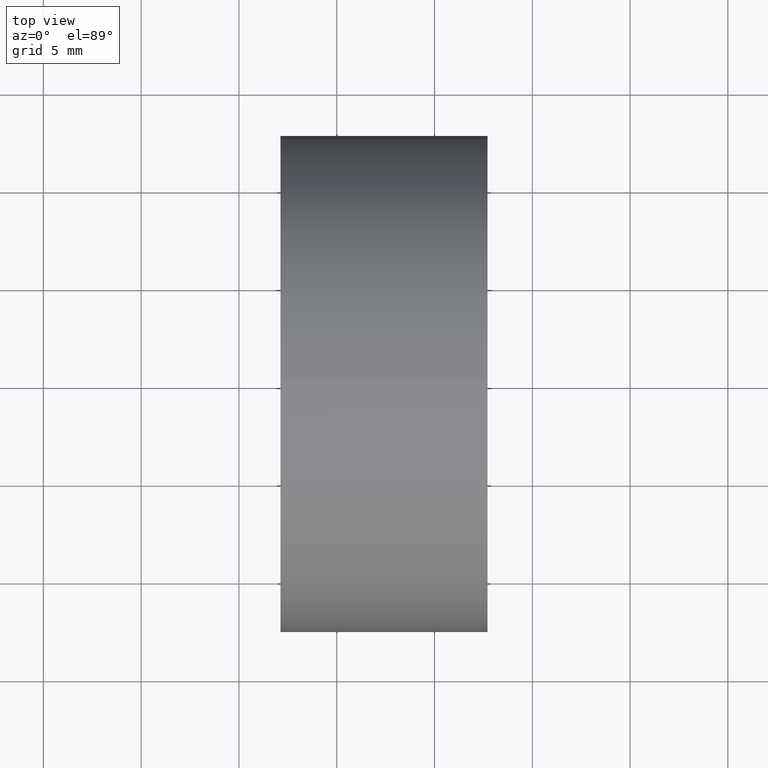
[diagram: clean part render]
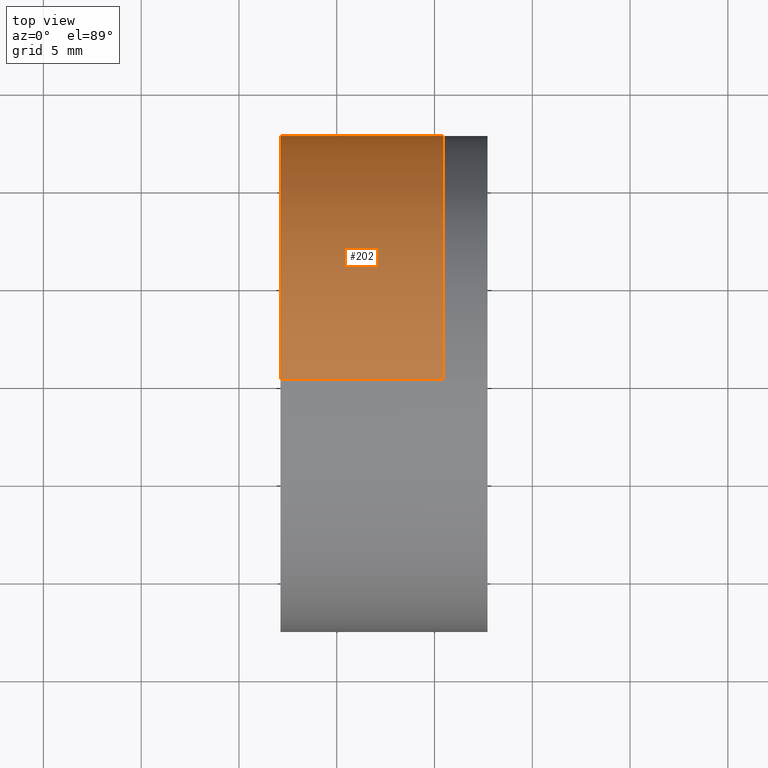
[diagram: same view with one face highlighted and labeled with its STEP entity id]
A machine part, top view. The second image highlights one B-rep face of the part: STEP entity #202.
In plain terms, the highlighted cylindrical surface (partial cylindrical patch) has radius 12.7 mm, axis along (-1, -0, 0).
Its self-contained STEP definition (entity closure, byte-faithful):
#16 = EDGE_CURVE ( 'NONE', #320, #158, #213, .T. ) ;
#72 = FACE_OUTER_BOUND ( 'NONE', #111, .T. ) ;
#91 = ORIENTED_EDGE ( 'NONE', *, *, #147, .T. ) ;
#100 = DIRECTION ( 'NONE',  ( 1.878145495644173900E-016, 0.0000000000000000000, 1.000000000000000000 ) ) ;
#111 = EDGE_LOOP ( 'NONE', ( #91, #339, #285, #206 ) ) ;
#118 = DIRECTION ( 'NONE',  ( 0.0000000000000000000, 0.0000000000000000000, 1.000000000000000000 ) ) ;
#120 = VERTEX_POINT ( 'NONE', #166 ) ;
#140 = AXIS2_PLACEMENT_3D ( 'NONE', #175, #179, #255 ) ;
#147 = EDGE_CURVE ( 'NONE', #120, #247, #347, .T. ) ;
#149 = CARTESIAN_POINT ( 'NONE',  ( 257.1233165672844600, 0.0000000000000000000, -4.738269518283348700E-014 ) ) ;
#154 = CYLINDRICAL_SURFACE ( 'NONE', #233, 12.70000000000004700 ) ;
#158 = VERTEX_POINT ( 'NONE', #183 ) ;
#164 = DIRECTION ( 'NONE',  ( -1.000000000000000000, -0.0000000000000000000, 1.836970198721029700E-016 ) ) ;
#166 = CARTESIAN_POINT ( 'NONE',  ( 265.4434669434605200, 0.0000000000000000000, 12.69999999999999900 ) ) ;
#175 = CARTESIAN_POINT ( 'NONE',  ( 265.4434669434605200, 0.0000000000000000000, -4.891108201182477700E-014 ) ) ;
#179 = DIRECTION ( 'NONE',  ( -1.000000000000000000, -0.0000000000000000000, 1.836970198721029700E-016 ) ) ;
#180 = VECTOR ( 'NONE', #164, 1000.000000000000000 ) ;
#181 = CARTESIAN_POINT ( 'NONE',  ( 265.4434669434605200, 1.555301434917144500E-015, -12.70000000000009700 ) ) ;
#183 = CARTESIAN_POINT ( 'NONE',  ( 257.1233165672844600, 1.555301434917144000E-015, -12.70000000000004900 ) ) ;
#198 = LINE ( 'NONE', #315, #256 ) ;
#202 = ADVANCED_FACE ( 'NONE', ( #72 ), #154, .T. ) ;
#206 = ORIENTED_EDGE ( 'NONE', *, *, #276, .F. ) ;
#207 = DIRECTION ( 'NONE',  ( -1.000000000000000000, -0.0000000000000000000, 1.836970198721029700E-016 ) ) ;
#213 = CIRCLE ( 'NONE', #329, 12.70000000000004500 ) ;
#222 = CARTESIAN_POINT ( 'NONE',  ( 257.1233165672844600, 0.0000000000000000000, 12.69999999999999900 ) ) ;
#233 = AXIS2_PLACEMENT_3D ( 'NONE', #293, #207, #100 ) ;
#242 = CARTESIAN_POINT ( 'NONE',  ( -0.8160621761658063400, 1.555301434917144500E-015, -12.70000000000004700 ) ) ;
#247 = VERTEX_POINT ( 'NONE', #181 ) ;
#255 = DIRECTION ( 'NONE',  ( 0.0000000000000000000, 0.0000000000000000000, 1.000000000000000000 ) ) ;
#256 = VECTOR ( 'NONE', #314, 1000.000000000000000 ) ;
#276 = EDGE_CURVE ( 'NONE', #120, #320, #198, .T. ) ;
#285 = ORIENTED_EDGE ( 'NONE', *, *, #16, .F. ) ;
#293 = CARTESIAN_POINT ( 'NONE',  ( -0.8160621761658039000, 0.0000000000000000000, 0.0000000000000000000 ) ) ;
#311 = DIRECTION ( 'NONE',  ( -1.000000000000000000, -0.0000000000000000000, 1.836970198721029700E-016 ) ) ;
#314 = DIRECTION ( 'NONE',  ( -1.000000000000000000, -0.0000000000000000000, 1.836970198721029700E-016 ) ) ;
#315 = CARTESIAN_POINT ( 'NONE',  ( -0.8160621761658015700, 0.0000000000000000000, 12.70000000000004700 ) ) ;
#316 = EDGE_CURVE ( 'NONE', #247, #158, #317, .T. ) ;
#317 = LINE ( 'NONE', #242, #180 ) ;
#320 = VERTEX_POINT ( 'NONE', #222 ) ;
#329 = AXIS2_PLACEMENT_3D ( 'NONE', #149, #311, #118 ) ;
#339 = ORIENTED_EDGE ( 'NONE', *, *, #316, .T. ) ;
#347 = CIRCLE ( 'NONE', #140, 12.70000000000004700 ) ;